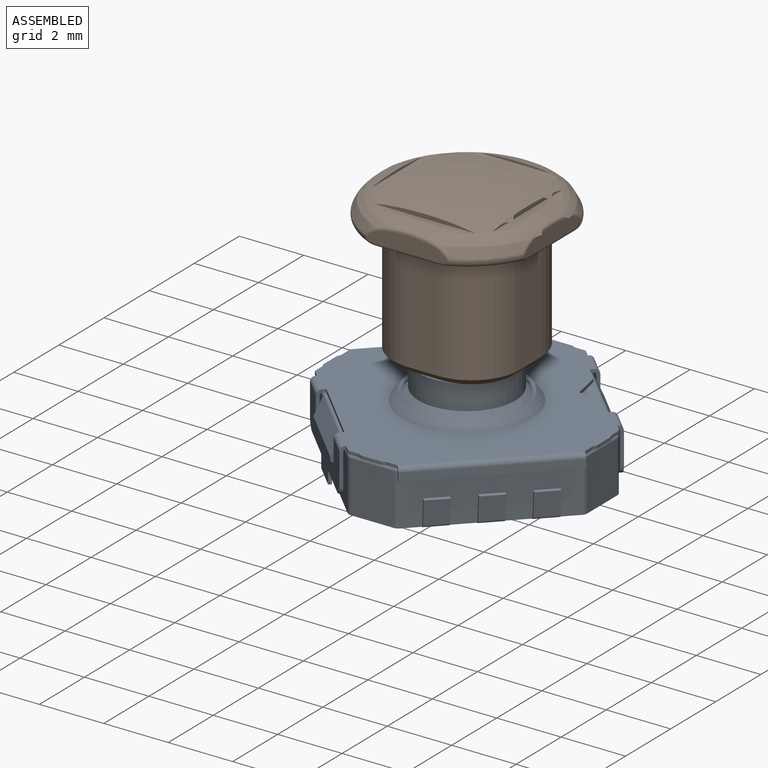
[diagram: assembled view]
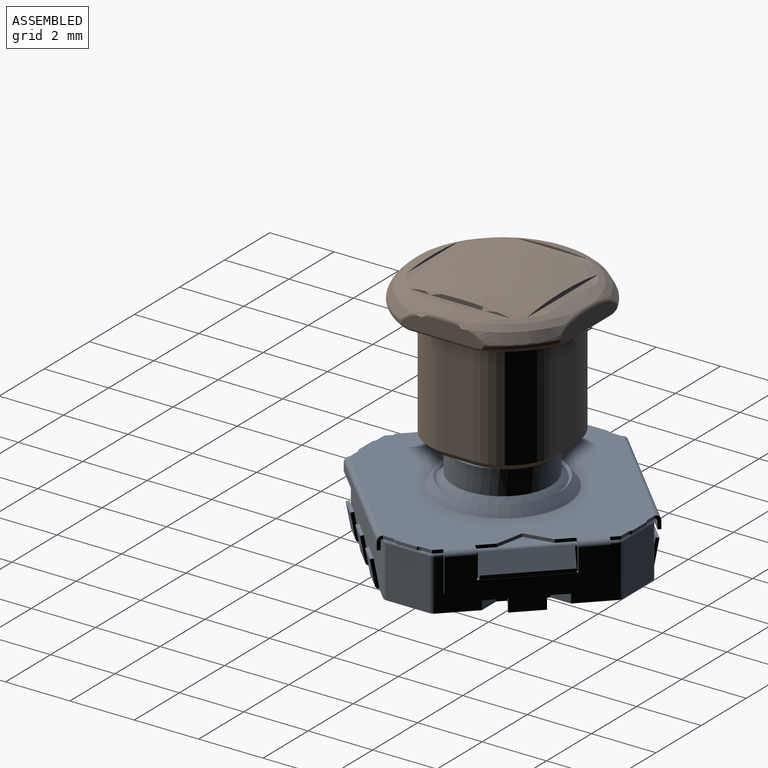
[diagram: assembled view, second angle]
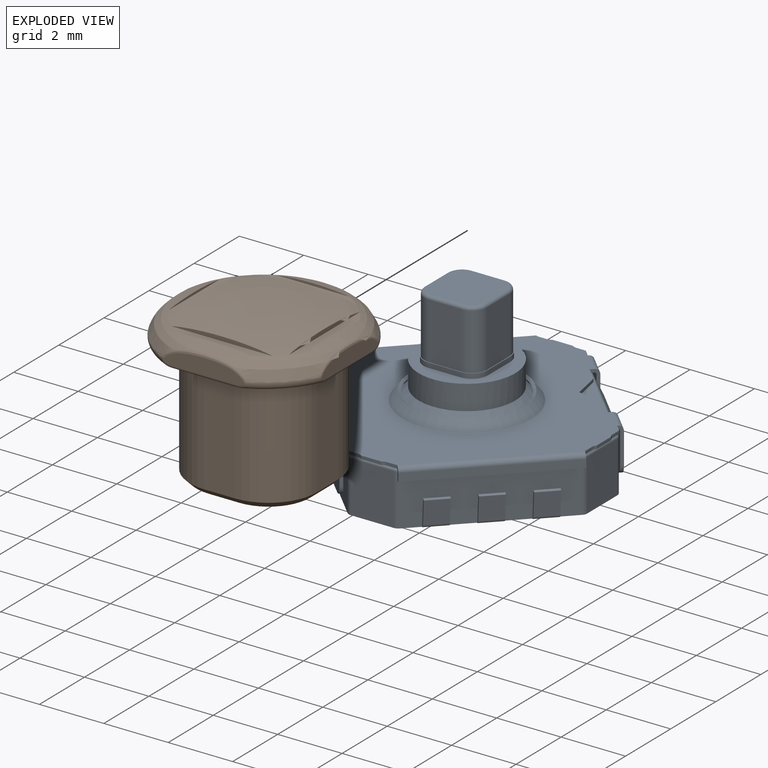
[diagram: exploded view]
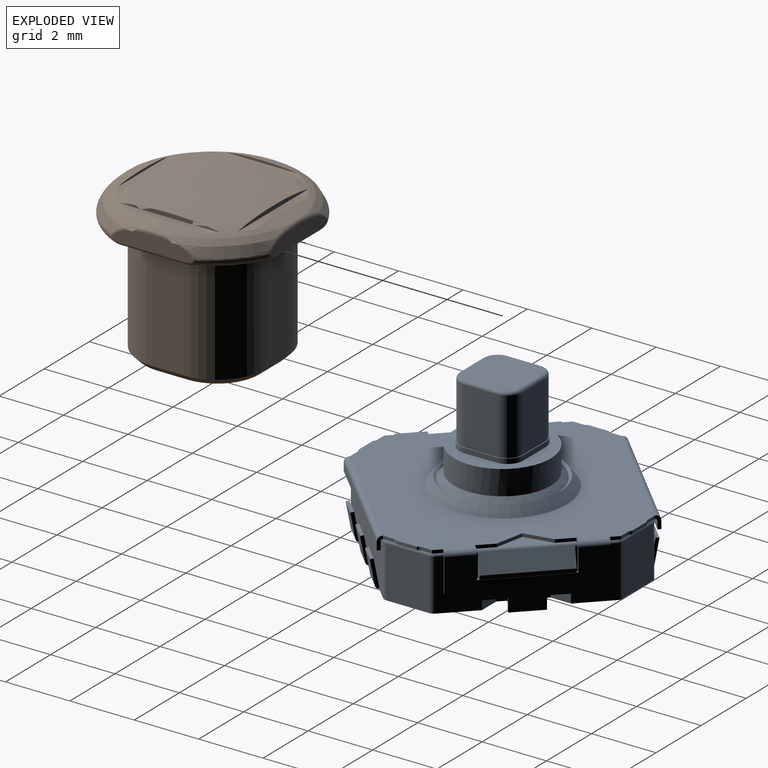
[diagram: exploded view, second angle]
ASSEMBLY  parts=2 mates=2
PART A: 242 faces, bbox 7.5x7.5x5.5 mm
  f0: cone r=1.81mm half-angle=37deg, axis (0,0,-1), area 2.3mm2, adj f140,f141,f175
  f1: cylinder r=1.5mm len=3mm, axis (0,0,-1), area 7.2mm2, adj f111,f140,f141
  f2: cylinder r=0.5mm len=0.71mm, axis (0,0,-1), area 0.1mm2, adj f59,f82,f88,f111
  f3: cylinder r=0.47mm len=1.75mm, axis (0,0,-1), area 1.3mm2, adj f21,f22,f23,f59
  f4: cylinder r=0.47mm len=1.75mm, axis (0,0,-1), area 1.3mm2, adj f6,f9,f11,f59
  f5: plane 0.46x0.46mm, normal (0,0,-1), area 0.2mm2, adj f13
  f6: plane 1.75x0.71mm, normal (-0.71,-0.71,0), area 1.8mm2, adj f4,f10,f14,f59
  f7: torus R=0.37mm, axis (0,0,-1), area 0.1mm2, adj f10,f14,f15,f16
  f8: cylinder r=0.1mm len=0.79mm, axis (0.71,0.71,0), area 0.2mm2, adj f9,f11,f12,f16
  f9: torus R=0.37mm, axis (0,0,-1), area 0.1mm2, adj f4,f8,f10,f16
  f10: cylinder r=0.1mm len=0.79mm, axis (0.71,-0.71,0), area 0.2mm2, adj f6,f7,f9,f16
  f11: plane 1.75x0.71mm, normal (0.71,-0.71,0), area 1.8mm2, adj f4,f8,f17,f59
  f12: torus R=0.37mm, axis (0,0,-1), area 0.1mm2, adj f8,f16,f17,f18
  f13: cone r=0.32mm half-angle=25deg, axis (0,0,1), area 0.4mm2, adj f5,f20
  f14: cylinder r=0.47mm len=1.75mm, axis (0,0,-1), area 1.3mm2, adj f6,f7,f21,f59
  f15: cylinder r=0.1mm len=0.79mm, axis (-0.71,-0.71,0), area 0.2mm2, adj f7,f16,f21,f22
  f16: plane 2.17x2.17mm, normal (0,0,1), area 2.9mm2, adj f7,f8,f9,f10,f12,f15,f18,f22
  f17: cylinder r=0.47mm len=1.75mm, axis (0,0,-1), area 1.3mm2, adj f11,f12,f23,f59
  f18: cylinder r=0.1mm len=0.79mm, axis (-0.71,0.71,0), area 0.2mm2, adj f12,f16,f22,f23
  f19: plane 0.76x0.76mm, normal (0,0,-1), area 0.5mm2, adj f24
  f20: cylinder r=0.33mm len=0.65mm, axis (0,0,-1), area 0.8mm2, adj f13,f25
  f21: plane 1.75x0.71mm, normal (-0.71,0.71,0), area 1.8mm2, adj f3,f14,f15,f59
  f22: torus R=0.37mm, axis (0,0,-1), area 0.1mm2, adj f3,f15,f16,f18
  f23: plane 1.75x0.71mm, normal (0.71,0.71,0), area 1.8mm2, adj f3,f17,f18,f59
  f24: cone r=0.47mm half-angle=25deg, axis (0,0,1), area 0.6mm2, adj f19,f50
  f25: plane 1.4x1.4mm, normal (0,0,-1), area 1.4mm2, adj f20,f52,f66,f71,f92
  f26: plane 0.7x0.1mm, normal (-0.17,0,0.98), area 0.1mm2, adj f36,f37,f38,f53
  f27: plane 0.7x0.1mm, normal (-0.17,0,0.98), area 0.1mm2, adj f32,f39,f40,f54
  f28: plane 0.7x0.1mm, normal (-0.17,0,0.98), area 0.1mm2, adj f33,f34,f35,f55
  f29: plane 0.7x0.1mm, normal (0.17,0,0.98), area 0.1mm2, adj f45,f46,f47,f56
  f30: plane 0.7x0.1mm, normal (0.17,0,0.98), area 0.1mm2, adj f41,f48,f49,f57
  f31: plane 0.7x0.1mm, normal (0.17,0,0.98), area 0.1mm2, adj f42,f43,f44,f58
  f32: plane 0.86x0.24mm, normal (0,1,0), area 0.1mm2, adj f27,f40,f54,f62,f75,f90
  f33: plane 0.86x0.24mm, normal (0,-1,0), area 0.1mm2, adj f28,f34,f55,f60,f76,f90
  f34: plane 0.75x0.7mm, normal (0.98,0,0.17), area 0.5mm2, adj f28,f33,f35,f60
  f35: plane 0.86x0.24mm, normal (0,1,0), area 0.1mm2, adj f28,f34,f55,f60,f76,f90
  f36: plane 0.86x0.24mm, normal (0,-1,0), area 0.1mm2, adj f26,f37,f53,f61,f74,f90
  f37: plane 0.75x0.7mm, normal (0.98,0,0.17), area 0.5mm2, adj f26,f36,f38,f61
  f38: plane 0.86x0.24mm, normal (0,1,0), area 0.1mm2, adj f26,f37,f53,f61,f74,f90
  f39: plane 0.86x0.24mm, normal (0,-1,0), area 0.1mm2, adj f27,f40,f54,f62,f75,f90
  f40: plane 0.75x0.7mm, normal (0.98,0,0.17), area 0.5mm2, adj f27,f32,f39,f62
  f41: plane 0.86x0.24mm, normal (0,-1,0), area 0.1mm2, adj f30,f49,f57,f65,f79,f91
  f42: plane 0.86x0.24mm, normal (0,1,0), area 0.1mm2, adj f31,f43,f58,f63,f80,f91
  f43: plane 0.75x0.7mm, normal (-0.98,0,0.17), area 0.5mm2, adj f31,f42,f44,f63
  f44: plane 0.86x0.24mm, normal (0,-1,0), area 0.1mm2, adj f31,f43,f58,f63,f80,f91
  f45: plane 0.86x0.24mm, normal (0,1,0), area 0.1mm2, adj f29,f46,f56,f64,f78,f91
  f46: plane 0.75x0.7mm, normal (-0.98,0,0.17), area 0.5mm2, adj f29,f45,f47,f64
  f47: plane 0.86x0.24mm, normal (0,-1,0), area 0.1mm2, adj f29,f46,f56,f64,f78,f91
  f48: plane 0.86x0.24mm, normal (0,1,0), area 0.1mm2, adj f30,f49,f57,f65,f79,f91
  f49: plane 0.75x0.7mm, normal (-0.98,0,0.17), area 0.5mm2, adj f30,f41,f48,f65
  f50: cylinder r=0.47mm len=0.95mm, axis (0,0,-1), area 1.1mm2, adj f24,f68
  f51: cylinder r=0.85mm len=1.7mm, axis (0,0,-1), area 0.2mm2, adj f67,f68,f69,f70
  f52: cylinder r=0.7mm len=1.4mm, axis (0,0,-1), area 0.2mm2, adj f25,f66,f70,f71
  f53: plane 0.75x0.7mm, normal (-0.98,0,-0.17), area 0.5mm2, adj f26,f36,f38,f74
  f54: plane 0.75x0.7mm, normal (-0.98,0,-0.17), area 0.5mm2, adj f27,f32,f39,f75
  f55: plane 0.75x0.7mm, normal (-0.98,0,-0.17), area 0.5mm2, adj f28,f33,f35,f76
  f56: plane 0.75x0.7mm, normal (0.98,0,-0.17), area 0.5mm2, adj f29,f45,f47,f78
  f57: plane 0.75x0.7mm, normal (0.98,0,-0.17), area 0.5mm2, adj f30,f41,f48,f79
  f58: plane 0.75x0.7mm, normal (0.98,0,-0.17), area 0.5mm2, adj f31,f42,f44,f80
  f59: plane 2.41x2.41mm, normal (0,0,1), area 0.2mm2, adj f2,f3,f4,f6,f11,f14,f17,f21
  f60: cylinder r=0.01mm len=0.7mm, axis (0,1,0), area 0mm2, adj f33,f34,f35,f90
  f61: cylinder r=0.01mm len=0.7mm, axis (0,-1,0), area 0mm2, adj f36,f37,f38,f90
  f62: cylinder r=0.01mm len=0.7mm, axis (0,-1,0), area 0mm2, adj f32,f39,f40,f90
  f63: cylinder r=0.01mm len=0.7mm, axis (0,-1,0), area 0mm2, adj f42,f43,f44,f91
  f64: cylinder r=0.01mm len=0.7mm, axis (0,1,0), area 0mm2, adj f45,f46,f47,f91
  f65: cylinder r=0.01mm len=0.7mm, axis (0,1,0), area 0mm2, adj f41,f48,f49,f91
  f66: plane 0.7x0.07mm, normal (1,0,0), area 0mm2, adj f25,f52,f70,f92,f93
  f67: plane 0.7x0.07mm, normal (1,0,0), area 0mm2, adj f51,f68,f70,f97,f98
  f68: plane 1.7x1.55mm, normal (0,0,-1), area 1.6mm2, adj f50,f51,f67,f69,f98
  f69: plane 0.7x0.07mm, normal (-1,0,0), area 0mm2, adj f51,f68,f70,f98,f99
  f70: plane 5.2x5mm, normal (0,0,-1), area 21.9mm2, adj f51,f52,f66,f67,f69,f71,f93,f94
  f71: plane 0.7x0.07mm, normal (-1,0,0), area 0mm2, adj f25,f52,f70,f92,f103
  f72: cylinder r=0.2mm len=1.59mm, axis (0,0,-1), area 0.2mm2, adj f91,f104,f107,f128
  f73: cylinder r=0.2mm len=1.59mm, axis (0,0,-1), area 0.2mm2, adj f90,f106,f107,f114
  f74: cylinder r=0.11mm len=0.7mm, axis (0,-1,0), area 0.1mm2, adj f36,f38,f53,f107
  f75: cylinder r=0.11mm len=0.7mm, axis (0,-1,0), area 0.1mm2, adj f32,f39,f54,f107
  f76: cylinder r=0.11mm len=0.7mm, axis (0,1,0), area 0.1mm2, adj f33,f35,f55,f107
  f77: cylinder r=0.2mm len=1.59mm, axis (0,0,-1), area 0.2mm2, adj f90,f107,f108,f116
  f78: cylinder r=0.11mm len=0.7mm, axis (0,1,0), area 0.1mm2, adj f45,f47,f56,f107
  f79: cylinder r=0.11mm len=0.7mm, axis (0,1,0), area 0.1mm2, adj f41,f48,f57,f107
  f80: cylinder r=0.11mm len=0.7mm, axis (0,-1,0), area 0.1mm2, adj f42,f44,f58,f107
  f81: cylinder r=0.2mm len=1.59mm, axis (0,0,-1), area 0.2mm2, adj f91,f107,f110,f126
  f82: plane 0.71x0.71mm, normal (0.71,0.71,0), area 0.1mm2, adj f2,f59,f83,f111
  f83: cylinder r=0.5mm len=0.71mm, axis (0,0,-1), area 0.1mm2, adj f59,f82,f84,f111
  f84: plane 0.71x0.71mm, normal (0.71,-0.71,0), area 0.1mm2, adj f59,f83,f85,f111
  f85: cylinder r=0.5mm len=0.71mm, axis (0,0,-1), area 0.1mm2, adj f59,f84,f86,f111
  f86: plane 0.71x0.71mm, normal (-0.71,-0.71,0), area 0.1mm2, adj f59,f85,f87,f111
  f87: cylinder r=0.5mm len=0.71mm, axis (0,0,-1), area 0.1mm2, adj f59,f86,f88,f111
  f88: plane 0.71x0.71mm, normal (-0.71,0.71,0), area 0.1mm2, adj f2,f59,f87,f111
  f89: cylinder r=0.1mm len=4.71mm, axis (1,0,0), area 0.6mm2, adj f112,f118,f124,f136,f138,f139,f152,f154
  f90: plane 4.71x1.59mm, normal (-1,0,0), area 7.3mm2, adj f32,f33,f35,f36,f38,f39,f60,f61
  f91: plane 4.71x1.59mm, normal (1,0,0), area 7.3mm2, adj f41,f42,f44,f45,f47,f48,f63,f64
  f92: plane 1.4x0.03mm, normal (0,-1,0), area 0mm2, adj f25,f66,f71,f107
  f93: plane 1.65x0.04mm, normal (0,1,0), area 0.1mm2, adj f66,f70,f94,f107
  f94: cylinder r=0.15mm len=0.15mm, axis (0,0,-1), area 0mm2, adj f70,f93,f95,f107
  f95: plane 4.9x0.04mm, normal (-1,0,0), area 0.2mm2, adj f70,f94,f96,f107
  f96: cylinder r=0.15mm len=0.15mm, axis (0,0,-1), area 0mm2, adj f70,f95,f97,f107
  f97: plane 1.5x0.04mm, normal (0,-1,0), area 0.1mm2, adj f67,f70,f96,f107
  f98: plane 1.7x0.03mm, normal (0,1,0), area 0.1mm2, adj f67,f68,f69,f107
  f99: plane 1.5x0.04mm, normal (0,-1,0), area 0.1mm2, adj f69,f70,f100,f107
  f100: cylinder r=0.15mm len=0.15mm, axis (0,0,-1), area 0mm2, adj f70,f99,f101,f107
  f101: plane 4.9x0.04mm, normal (1,0,0), area 0.2mm2, adj f70,f100,f102,f107
  f102: cylinder r=0.15mm len=0.15mm, axis (0,0,-1), area 0mm2, adj f70,f101,f103,f107
  f103: plane 1.65x0.04mm, normal (0,1,0), area 0.1mm2, adj f70,f71,f102,f107
  f104: plane 1.59x0.94mm, normal (0.71,-0.71,0), area 2.1mm2, adj f72,f107,f123,f129
  f105: plane 1.4x0.64mm, normal (0,-1,0), area 0.9mm2, adj f107,f119,f120,f121
  f106: plane 1.59x0.94mm, normal (-0.71,-0.71,0), area 2.1mm2, adj f73,f107,f113,f122
  f107: plane 7x7mm, normal (0,0,-1), area 19.1mm2, adj f72,f73,f74,f75,f76,f77,f78,f79
  f108: plane 1.59x0.94mm, normal (-0.71,0.71,0), area 2.1mm2, adj f77,f107,f117,f130
  f109: plane 1.4x0.64mm, normal (0,1,0), area 0.9mm2, adj f107,f131,f132,f133
  f110: plane 1.59x0.94mm, normal (0.71,0.71,0), area 2.1mm2, adj f81,f107,f125,f134
  f111: plane 3x3mm, normal (0,0,1), area 3.3mm2, adj f1,f2,f82,f83,f84,f85,f86,f87
  f112: plane 2.51x0.54mm, normal (0,0.9,0.43), area 1.5mm2, adj f89,f135,f152,f154
  f113: cylinder r=0.1mm len=1.01mm, axis (-0.71,0.71,0), area 0.2mm2, adj f106,f114,f136,f187
  f114: torus R=0.1mm, axis (0,0,1), area 0mm2, adj f73,f113,f115,f136
  f115: cylinder r=0.1mm len=4.71mm, axis (0,-1,0), area 0.7mm2, adj f90,f114,f116,f136
  f116: torus R=0.1mm, axis (0,0,1), area 0mm2, adj f77,f115,f117,f136
  f117: cylinder r=0.1mm len=1.01mm, axis (-0.71,-0.71,0), area 0.2mm2, adj f108,f116,f118,f136
  f118: torus R=0.1mm, axis (0,0,1), area 0mm2, adj f89,f117,f130,f136
  f119: plane 0.64x0.45mm, normal (-0.71,-0.71,0), area 0.4mm2, adj f105,f107,f120,f137
  f120: plane 2.3x0.45mm, normal (0,0,-1), area 0.8mm2, adj f105,f119,f121,f137
  f121: plane 0.64x0.45mm, normal (0.71,-0.71,0), area 0.4mm2, adj f105,f107,f120,f137
  f122: cylinder r=0.2mm len=1.59mm, axis (0,0,-1), area 0.2mm2, adj f106,f107,f137,f187
  f123: cylinder r=0.2mm len=1.59mm, axis (0,0,-1), area 0.2mm2, adj f104,f107,f137,f186
  f124: torus R=0.1mm, axis (0,0,1), area 0mm2, adj f89,f125,f134,f138
  f125: cylinder r=0.1mm len=1.01mm, axis (0.71,-0.71,0), area 0.2mm2, adj f110,f124,f126,f138
  f126: torus R=0.1mm, axis (0,0,1), area 0mm2, adj f81,f125,f127,f138
  f127: cylinder r=0.1mm len=4.71mm, axis (0,-1,0), area 0.7mm2, adj f91,f126,f128,f138
  f128: torus R=0.1mm, axis (0,0,1), area 0mm2, adj f72,f127,f129,f138
  f129: cylinder r=0.1mm len=1.01mm, axis (0.71,0.71,0), area 0.2mm2, adj f104,f128,f138,f186
  f130: cylinder r=0.2mm len=1.59mm, axis (0,0,-1), area 0.2mm2, adj f107,f108,f118,f139
  f131: plane 0.64x0.45mm, normal (0.71,0.71,0), area 0.4mm2, adj f107,f109,f132,f139
  f132: plane 2.3x0.45mm, normal (0,0,-1), area 0.8mm2, adj f109,f131,f133,f139
  f133: plane 0.64x0.45mm, normal (-0.71,0.71,0), area 0.4mm2, adj f107,f109,f132,f139
  f134: cylinder r=0.2mm len=1.59mm, axis (0,0,-1), area 0.2mm2, adj f107,f110,f124,f139
  f135: plane 2.51x0.12mm, normal (0,1,0), area 0.3mm2, adj f112,f142,f152,f154
  f136: plane 7.05x2.22mm, normal (0,0,-1), area 1.2mm2, adj f89,f113,f114,f115,f116,f117,f118,f143
  f137: plane 4.71x1.59mm, normal (0,-1,0), area 4.1mm2, adj f107,f119,f120,f121,f122,f123,f144,f185
  f138: plane 7.05x2.22mm, normal (0,0,-1), area 1.2mm2, adj f89,f124,f125,f126,f127,f128,f129,f151
  f139: plane 4.71x1.59mm, normal (0,1,0), area 4.1mm2, adj f89,f107,f130,f131,f132,f133,f134,f152
  f140: sphere r=2.3mm, area 2.4mm2, adj f0,f1,f141
  f141: sphere r=2.3mm, area 2.4mm2, adj f0,f1,f140
  f142: plane 2.51x0.08mm, normal (0,0.51,-0.86), area 0.2mm2, adj f135,f152,f154,f162
  f143: cylinder r=0.05mm len=4.85mm, axis (0,-1,0), area 0.4mm2, adj f136,f163,f180,f181
  f144: plane 2.51x0.08mm, normal (0,-0.51,-0.86), area 0.2mm2, adj f137,f165,f185,f188
  f145: plane 1.35x0.1mm, normal (0,0,-1), area 0.1mm2, adj f146,f165,f169,f170
  f146: plane 0.4x0.1mm, normal (1,0,0), area 0mm2, adj f145,f147,f165,f170
  f147: plane 1x0.1mm, normal (0,0,-1), area 0.1mm2, adj f146,f148,f165,f170
  f148: plane 0.4x0.1mm, normal (-1,0,0), area 0mm2, adj f147,f149,f165,f170
  f149: plane 1.35x0.1mm, normal (0,0,-1), area 0.1mm2, adj f148,f164,f165,f170
  f150: plane 2.51x0.08mm, normal (0,-0.51,-0.86), area 0.2mm2, adj f167,f170,f185,f188
  f151: cylinder r=0.05mm len=4.85mm, axis (0,-1,0), area 0.4mm2, adj f138,f171,f194,f195
  f152: plane 0.81x0.26mm, normal (1,0,0), area 0.1mm2, adj f89,f112,f135,f139,f142,f153,f162,f173
  f153: plane 2.51x0.08mm, normal (0,0.51,-0.86), area 0.2mm2, adj f139,f152,f154,f174
  f154: plane 0.81x0.26mm, normal (-1,0,0), area 0.1mm2, adj f89,f112,f135,f139,f142,f153,f160,f162
  f155: plane 1.35x0.1mm, normal (0,0,-1), area 0.1mm2, adj f156,f161,f162,f174
  f156: plane 0.4x0.1mm, normal (-1,0,0), area 0mm2, adj f155,f157,f162,f174
  f157: plane 1x0.1mm, normal (0,0,-1), area 0.1mm2, adj f156,f158,f162,f174
  f158: plane 0.4x0.1mm, normal (1,0,0), area 0mm2, adj f157,f159,f162,f174
  f159: plane 1.35x0.1mm, normal (0,0,-1), area 0.1mm2, adj f158,f162,f172,f174
  f160: plane 0.1x0.06mm, normal (0,0,1), area 0mm2, adj f154,f162,f174,f176
  f161: cylinder r=0.3mm len=0.3mm, axis (0,-1,0), area 0mm2, adj f155,f162,f174,f178
  f162: plane 4.3x1.68mm, normal (0,1,0), area 4mm2, adj f142,f152,f154,f155,f156,f157,f158,f159
  f163: plane 4.85x0.25mm, normal (1,0,0), area 1.2mm2, adj f143,f179,f180,f181
  f164: cylinder r=0.3mm len=0.3mm, axis (0,1,0), area 0mm2, adj f149,f165,f170,f182
  f165: plane 4.3x1.68mm, normal (0,1,0), area 3.8mm2, adj f144,f145,f146,f147,f148,f149,f164,f166
  f166: plane 0.1x0.06mm, normal (0,0,1), area 0mm2, adj f165,f170,f183,f188
  f167: plane 2.51x0.12mm, normal (0,-1,0), area 0.3mm2, adj f150,f185,f188,f189
  f168: plane 0.1x0.06mm, normal (0,0,1), area 0mm2, adj f165,f170,f185,f190
  f169: cylinder r=0.3mm len=0.3mm, axis (0,1,0), area 0mm2, adj f145,f165,f170,f192
  f170: plane 4.3x1.68mm, normal (0,-1,0), area 4mm2, adj f145,f146,f147,f148,f149,f150,f164,f166
  f171: plane 4.85x0.25mm, normal (-1,0,0), area 1.2mm2, adj f151,f193,f194,f195
  f172: cylinder r=0.3mm len=0.3mm, axis (0,-1,0), area 0mm2, adj f159,f162,f174,f196
  f173: plane 0.1x0.06mm, normal (0,0,1), area 0mm2, adj f152,f162,f174,f197
  f174: plane 4.3x1.68mm, normal (0,-1,0), area 3.8mm2, adj f152,f153,f154,f155,f156,f157,f158,f159
  f175: cone r=1.77mm half-angle=53deg, axis (0,0,1), area 1.1mm2, adj f0,f199
  f176: plane 0.85x0.28mm, normal (1,0,0), area 0.1mm2, adj f136,f160,f162,f174,f177,f209,f210,f241
  f177: cylinder r=0.05mm len=0.84mm, axis (1,0,0), area 0.1mm2, adj f136,f174,f176,f178
  f178: plane 1.13x0.18mm, normal (-1,0,0), area 0.1mm2, adj f136,f161,f162,f174,f177,f210,f211,f241
  f179: plane 4.85x0.1mm, normal (0,0,-1), area 0.5mm2, adj f163,f180,f181,f201
  f180: plane 0.4x0.16mm, normal (0,1,0), area 0mm2, adj f136,f143,f163,f179,f201,f216,f217,f241
  f181: plane 0.4x0.16mm, normal (0,-1,0), area 0mm2, adj f136,f143,f163,f179,f201,f217,f218,f241
  f182: plane 1.13x0.18mm, normal (-1,0,0), area 0.1mm2, adj f136,f164,f165,f170,f184,f223,f224,f241
  f183: plane 0.85x0.28mm, normal (1,0,0), area 0.1mm2, adj f136,f165,f166,f170,f184,f224,f225,f241
  f184: cylinder r=0.05mm len=0.84mm, axis (1,0,0), area 0.1mm2, adj f136,f165,f182,f183
  f185: plane 0.81x0.26mm, normal (1,0,0), area 0.1mm2, adj f137,f144,f150,f165,f167,f168,f170,f189
  f186: torus R=0.1mm, axis (0,0,1), area 0mm2, adj f123,f129,f138,f202
  f187: torus R=0.1mm, axis (0,0,1), area 0mm2, adj f113,f122,f136,f202
  f188: plane 0.81x0.26mm, normal (-1,0,0), area 0.1mm2, adj f137,f144,f150,f165,f166,f167,f170,f189
  f189: plane 2.51x0.54mm, normal (0,-0.9,0.43), area 1.5mm2, adj f167,f185,f188,f202
  f190: plane 0.85x0.28mm, normal (-1,0,0), area 0.1mm2, adj f138,f165,f168,f170,f191,f225,f226,f241
  f191: cylinder r=0.05mm len=0.84mm, axis (-1,0,0), area 0.1mm2, adj f138,f165,f190,f192
  f192: plane 1.13x0.18mm, normal (1,0,0), area 0.1mm2, adj f138,f165,f169,f170,f191,f226,f227,f241
  f193: plane 4.85x0.1mm, normal (0,0,-1), area 0.5mm2, adj f171,f194,f195,f203
  f194: plane 0.4x0.16mm, normal (0,-1,0), area 0mm2, adj f138,f151,f171,f193,f203,f232,f233,f241
  f195: plane 0.4x0.16mm, normal (0,1,0), area 0mm2, adj f138,f151,f171,f193,f203,f233,f234,f241
  f196: plane 1.13x0.18mm, normal (1,0,0), area 0.1mm2, adj f138,f162,f172,f174,f198,f239,f240,f241
  f197: plane 0.85x0.28mm, normal (-1,0,0), area 0.1mm2, adj f138,f162,f173,f174,f198,f206,f240,f241
  f198: cylinder r=0.05mm len=0.84mm, axis (-1,0,0), area 0.1mm2, adj f138,f174,f196,f197
  f199: cone r=1.98mm half-angle=37deg, axis (0,0,-1), area 4.1mm2, adj f175,f204,f205
  f200: plane 1.5x0.5mm, normal (0,0,1), area 0.4mm2, adj f89,f207,f208
  f201: plane 4.85x0.25mm, normal (-1,0,0), area 1.2mm2, adj f179,f180,f181,f217
  f202: cylinder r=0.1mm len=4.71mm, axis (1,0,0), area 0.6mm2, adj f136,f137,f138,f185,f186,f187,f188,f189
  f203: plane 4.85x0.25mm, normal (1,0,0), area 1.2mm2, adj f193,f194,f195,f233
  f204: torus R=2.02mm, axis (0,0,-1), area 0.3mm2, adj f199,f205,f241
  f205: torus R=2.02mm, axis (0,0,-1), area 0.3mm2, adj f199,f204,f241
  f206: plane 0.56x0.1mm, normal (0,1,0), area 0.1mm2, adj f89,f197,f207,f241
  f207: plane 0.75x0.5mm, normal (-0.55,0.83,0), area 0.1mm2, adj f200,f206,f208,f241
  f208: plane 0.75x0.5mm, normal (0.55,0.83,0), area 0.1mm2, adj f200,f207,f209,f241
  f209: plane 0.56x0.1mm, normal (0,1,0), area 0.1mm2, adj f89,f176,f208,f241
  f210: cylinder r=0.15mm len=0.84mm, axis (1,0,0), area 0.2mm2, adj f162,f176,f178,f241
  f211: plane 0.29x0.1mm, normal (0,1,0), area 0mm2, adj f136,f178,f212,f241
  f212: plane 0.21x0.21mm, normal (-0.71,0.71,0), area 0mm2, adj f136,f211,f213,f241
  f213: cylinder r=0.2mm len=0.13mm, axis (0,0,-1), area 0mm2, adj f136,f212,f214,f241
  f214: plane 0.45x0.45mm, normal (-0.71,0.71,0), area 0.1mm2, adj f136,f213,f215,f241
  f215: cylinder r=0.2mm len=0.13mm, axis (0,0,-1), area 0mm2, adj f136,f214,f216,f241
  f216: plane 0.23x0.23mm, normal (-0.71,0.71,0), area 0mm2, adj f136,f180,f215,f241
  f217: cylinder r=0.15mm len=4.85mm, axis (0,-1,0), area 1.1mm2, adj f180,f181,f201,f241
  f218: plane 0.23x0.23mm, normal (-0.71,-0.71,0), area 0mm2, adj f136,f181,f219,f241
  f219: cylinder r=0.2mm len=0.13mm, axis (0,0,-1), area 0mm2, adj f136,f218,f220,f241
  f220: plane 0.45x0.45mm, normal (-0.71,-0.71,0), area 0.1mm2, adj f136,f219,f221,f241
  f221: cylinder r=0.2mm len=0.13mm, axis (0,0,-1), area 0mm2, adj f136,f220,f222,f241
  f222: plane 0.21x0.21mm, normal (-0.71,-0.71,0), area 0mm2, adj f136,f221,f223,f241
  f223: plane 0.29x0.1mm, normal (0,-1,0), area 0mm2, adj f136,f182,f222,f241
  f224: cylinder r=0.15mm len=0.84mm, axis (1,0,0), area 0.2mm2, adj f170,f182,f183,f241
  f225: plane 2.62x0.1mm, normal (0,-1,0), area 0.3mm2, adj f183,f190,f202,f241
  f226: cylinder r=0.15mm len=0.84mm, axis (-1,0,0), area 0.2mm2, adj f170,f190,f192,f241
  f227: plane 0.29x0.1mm, normal (0,-1,0), area 0mm2, adj f138,f192,f228,f241
  f228: plane 0.21x0.21mm, normal (0.71,-0.71,0), area 0mm2, adj f138,f227,f229,f241
  f229: cylinder r=0.2mm len=0.13mm, axis (0,0,-1), area 0mm2, adj f138,f228,f230,f241
  f230: plane 0.45x0.45mm, normal (0.71,-0.71,0), area 0.1mm2, adj f138,f229,f231,f241
  f231: cylinder r=0.2mm len=0.13mm, axis (0,0,-1), area 0mm2, adj f138,f230,f232,f241
  f232: plane 0.23x0.23mm, normal (0.71,-0.71,0), area 0mm2, adj f138,f194,f231,f241
  f233: cylinder r=0.15mm len=4.85mm, axis (0,-1,0), area 1.1mm2, adj f194,f195,f203,f241
  f234: plane 0.23x0.23mm, normal (0.71,0.71,0), area 0mm2, adj f138,f195,f235,f241
  f235: cylinder r=0.2mm len=0.13mm, axis (0,0,-1), area 0mm2, adj f138,f234,f236,f241
  f236: plane 0.45x0.45mm, normal (0.71,0.71,0), area 0.1mm2, adj f138,f235,f237,f241
  f237: cylinder r=0.2mm len=0.13mm, axis (0,0,-1), area 0mm2, adj f138,f236,f238,f241
  f238: plane 0.21x0.21mm, normal (0.71,0.71,0), area 0mm2, adj f138,f237,f239,f241
  f239: plane 0.29x0.1mm, normal (0,1,0), area 0mm2, adj f138,f196,f238,f241
  f240: cylinder r=0.15mm len=0.84mm, axis (-1,0,0), area 0.2mm2, adj f162,f196,f197,f241
  f241: plane 7.05x7.05mm, normal (0,0,1), area 33.5mm2, adj f176,f178,f180,f181,f182,f183,f190,f192
PART B: 75 faces, bbox 6.4x6.4x5 mm
  f0: plane 5.15x5.15mm, normal (0,0,-1), area 9.3mm2, adj f1,f22,f23,f24,f25,f26,f27,f28
  f1: cylinder r=0.1mm len=2.01mm, axis (1,0,0), area 0.3mm2, adj f0,f2,f20,f21
  f2: bspline ~0.45x0.34mm, area 0mm2, adj f1,f3,f20,f28
  f3: bspline ~2.62x0.5mm, area 0.2mm2, adj f2,f4,f20,f21
  f4: revolved ~5.9x5.9mm, area 12.4mm2, adj f3,f5,f9,f13,f17,f18,f19,f22
  f5: bspline ~2.62x0.5mm, area 0.2mm2, adj f4,f6,f7,f8
  f6: bspline ~0.45x0.34mm, area 0mm2, adj f5,f7,f23,f24
  f7: plane 2.51x0.49mm, normal (-1,0,0), area 1mm2, adj f5,f6,f8,f23
  f8: bspline ~0.45x0.34mm, area 0mm2, adj f5,f7,f22,f23
  f9: bspline ~2.62x0.5mm, area 0.2mm2, adj f4,f10,f11,f12
  f10: bspline ~0.45x0.34mm, area 0mm2, adj f9,f11,f25,f26
  f11: plane 2.51x0.49mm, normal (0,-1,0), area 1mm2, adj f9,f10,f12,f25
  f12: bspline ~0.45x0.34mm, area 0mm2, adj f9,f11,f24,f25
  f13: bspline ~2.62x0.5mm, area 0.2mm2, adj f4,f14,f15,f16
  f14: bspline ~0.45x0.34mm, area 0mm2, adj f13,f15,f27,f28
  f15: plane 2.51x0.49mm, normal (1,0,0), area 1mm2, adj f13,f14,f16,f27
  f16: bspline ~0.45x0.34mm, area 0mm2, adj f13,f15,f26,f27
  f17: plane 2.41x0.24mm, normal (-1,0,0), area 0.1mm2, adj f4,f18
  f18: plane 3.15x0.3mm, normal (0,0,1), area 0.8mm2, adj f4,f17,f19
  f19: plane 3.53x0.51mm, normal (1,0,0), area 0.3mm2, adj f4,f18
  f20: plane 2.51x0.49mm, normal (0,1,0), area 1mm2, adj f1,f2,f3,f21
  f21: bspline ~0.45x0.34mm, area 0mm2, adj f1,f3,f20,f22
  f22: torus R=2.76mm, axis (0,0,-1), area 0.8mm2, adj f0,f4,f8,f21
  f23: cylinder r=0.1mm len=2.01mm, axis (0,1,0), area 0.3mm2, adj f0,f6,f7,f8
  f24: torus R=2.76mm, axis (0,0,-1), area 0.8mm2, adj f0,f4,f6,f12
  f25: cylinder r=0.1mm len=2.01mm, axis (-1,0,0), area 0.3mm2, adj f0,f10,f11,f12
  f26: torus R=2.76mm, axis (0,0,-1), area 0.8mm2, adj f0,f4,f10,f16
  f27: cylinder r=0.1mm len=2.01mm, axis (0,-1,0), area 0.3mm2, adj f0,f14,f15,f16
  f28: torus R=2.76mm, axis (0,0,-1), area 0.8mm2, adj f0,f2,f4,f14
  f29: plane 3.5x0.95mm, normal (0,-1,0), area 3.3mm2, adj f0,f30,f56,f62
  f30: plane 0.95x0.2mm, normal (0,-0.71,-0.71), area 0.3mm2, adj f29,f31,f37,f55
  f31: cone r=1.3mm half-angle=45deg, axis (0,0,1), area 0.6mm2, adj f30,f32,f37,f62
  f32: plane 0.95x0.2mm, normal (0.71,0,-0.71), area 0.3mm2, adj f31,f33,f37,f61
  f33: cone r=1.3mm half-angle=45deg, axis (0,0,1), area 0.6mm2, adj f32,f34,f37,f60
  f34: plane 0.95x0.2mm, normal (0,0.71,-0.71), area 0.3mm2, adj f33,f35,f37,f59
  f35: cone r=1.3mm half-angle=45deg, axis (0,0,1), area 0.6mm2, adj f34,f36,f37,f58
  f36: plane 0.95x0.2mm, normal (-0.71,0,-0.71), area 0.3mm2, adj f35,f37,f55,f57
  f37: plane 3.55x3.55mm, normal (0,0,-1), area 5.8mm2, adj f30,f31,f32,f33,f34,f35,f36,f38
  f38: cone r=0.5mm half-angle=45deg, axis (0,0,-1), area 0.2mm2, adj f37,f39,f48,f54
  f39: cylinder r=0.3mm len=1.5mm, axis (0,0,1), area 0.7mm2, adj f38,f40,f46,f47
  f40: plane 1.5x1.35mm, normal (0,-1,0), area 2mm2, adj f39,f41,f47,f54
  f41: cylinder r=0.3mm len=1.5mm, axis (0,0,-1), area 0.7mm2, adj f40,f42,f47,f53
  f42: plane 1.5x1.35mm, normal (1,0,0), area 2mm2, adj f41,f43,f47,f52
  f43: cylinder r=0.3mm len=1.5mm, axis (0,0,1), area 0.7mm2, adj f42,f44,f47,f51
  f44: plane 1.5x1.35mm, normal (0,1,0), area 2mm2, adj f43,f45,f47,f50
  f45: cylinder r=0.3mm len=1.5mm, axis (0,0,-1), area 0.7mm2, adj f44,f46,f47,f49
  f46: plane 1.5x1.35mm, normal (-1,0,0), area 2mm2, adj f39,f45,f47,f48
  f47: plane 1.95x1.95mm, normal (0,0,-1), area 3.7mm2, adj f39,f40,f41,f42,f43,f44,f45,f46
  f48: plane 1.35x0.2mm, normal (-0.71,0,-0.71), area 0.4mm2, adj f37,f38,f46,f49
  f49: cone r=0.5mm half-angle=45deg, axis (0,0,-1), area 0.2mm2, adj f37,f45,f48,f50
  f50: plane 1.35x0.2mm, normal (0,0.71,-0.71), area 0.4mm2, adj f37,f44,f49,f51
  f51: cone r=0.5mm half-angle=45deg, axis (0,0,-1), area 0.2mm2, adj f37,f43,f50,f52
  f52: plane 1.35x0.2mm, normal (0.71,0,-0.71), area 0.4mm2, adj f37,f42,f51,f53
  f53: cone r=0.5mm half-angle=45deg, axis (0,0,-1), area 0.2mm2, adj f37,f41,f52,f54
  f54: plane 1.35x0.2mm, normal (0,-0.71,-0.71), area 0.4mm2, adj f37,f38,f40,f53
  f55: cone r=1.3mm half-angle=45deg, axis (0,0,1), area 0.6mm2, adj f30,f36,f37,f56
  f56: cylinder r=1.5mm len=3.5mm, axis (0,0,-1), area 8.2mm2, adj f0,f29,f55,f57
  f57: plane 3.5x0.95mm, normal (-1,0,0), area 3.3mm2, adj f0,f36,f56,f58
  f58: cylinder r=1.5mm len=3.5mm, axis (0,0,1), area 8.2mm2, adj f0,f35,f57,f59
  f59: plane 3.5x0.95mm, normal (0,1,0), area 3.3mm2, adj f0,f34,f58,f60
  f60: cylinder r=1.5mm len=3.5mm, axis (0,0,-1), area 8.2mm2, adj f0,f33,f59,f61
  f61: plane 3.5x0.95mm, normal (1,0,0), area 3.3mm2, adj f0,f32,f60,f62
  f62: cylinder r=1.5mm len=3.5mm, axis (0,0,1), area 8.2mm2, adj f0,f29,f31,f61
  f63: revolved ~3.15x1.01mm, area 0.8mm2, adj f64,f65,f66
  f64: plane 2.25x0.07mm, normal (0,-1,0), area 0.1mm2, adj f63,f66
  f65: plane 3.15x0.13mm, normal (0,1,0), area 0.3mm2, adj f63,f66
  f66: plane 3.15x0.3mm, normal (0,0,-1), area 0.8mm2, adj f63,f64,f65
  f67: revolved ~3.15x1.01mm, area 0.8mm2, adj f68,f69,f70
  f68: plane 2.25x0.07mm, normal (0,1,0), area 0.1mm2, adj f67,f70
  f69: plane 3.15x0.13mm, normal (0,-1,0), area 0.3mm2, adj f67,f70
  f70: plane 3.15x0.3mm, normal (0,0,-1), area 0.8mm2, adj f67,f68,f69
  f71: revolved ~3.15x1.01mm, area 0.8mm2, adj f72,f73,f74
  f72: plane 2.25x0.07mm, normal (-1,0,0), area 0.1mm2, adj f71,f74
  f73: plane 3.15x0.13mm, normal (1,0,0), area 0.3mm2, adj f71,f74
  f74: plane 3.15x0.3mm, normal (0,0,-1), area 0.8mm2, adj f71,f72,f73
PLACE A rot(axis=(0,0,-1),45deg) t=(1.56,-3.27,1.72)mm fixed
PLACE B t=(2.54,-4.25,4.93)mm
MATE planar A.f11 <-> B.f44  axis (0,-1,0) through (1.56,-4.25,6.62)mm
MATE planar B.f42 <-> A.f6  axis (1,0,0) through (0.59,-3.27,5.13)mm
